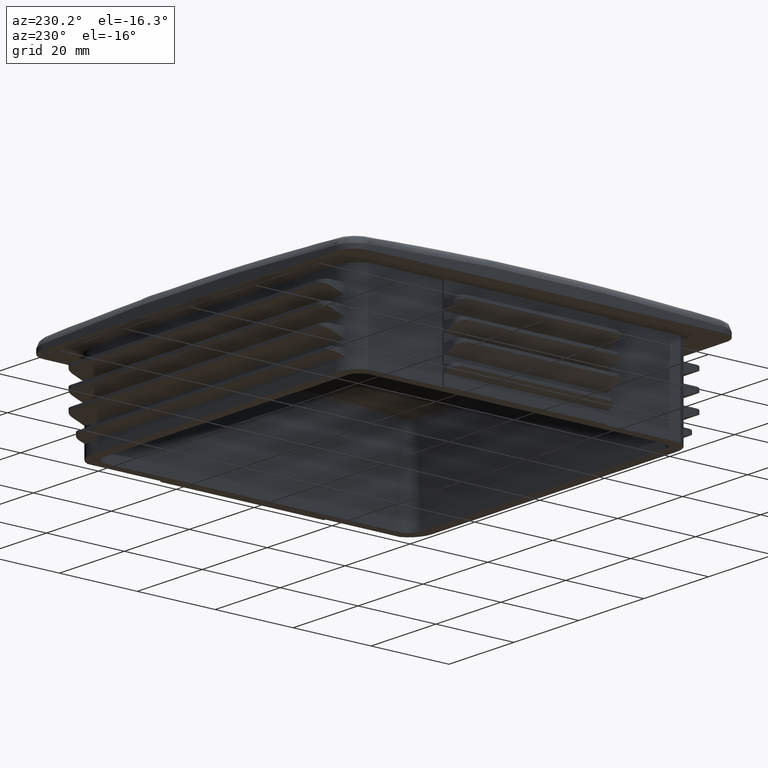
[diagram: clean part render]
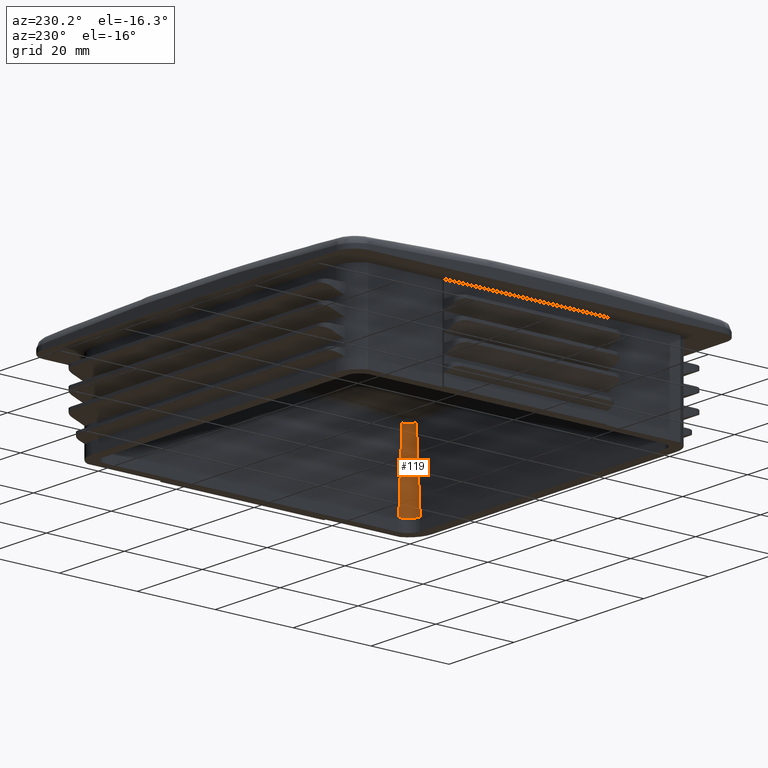
[diagram: same view with one face highlighted and labeled with its STEP entity id]
A machine part, auxiliary view. The second image highlights one B-rep face of the part: STEP entity #119.
In plain terms, the highlighted conical surface has half-angle 3 deg.
Its self-contained STEP definition (entity closure, byte-faithful):
#119 = ADVANCED_FACE( '', ( #417 ), #418, .F. );
#417 = FACE_OUTER_BOUND( '', #2736, .T. );
#418 = CONICAL_SURFACE( '', #2737, 3.00000000000001, 0.0523598775598299 );
#2736 = EDGE_LOOP( '', ( #3723, #3724, #3725, #3726 ) );
#2737 = AXIS2_PLACEMENT_3D( '', #3727, #3728, #3729 );
#3723 = ORIENTED_EDGE( '', *, *, #5468, .F. );
#3724 = ORIENTED_EDGE( '', *, *, #5456, .T. );
#3725 = ORIENTED_EDGE( '', *, *, #5472, .T. );
#3726 = ORIENTED_EDGE( '', *, *, #5581, .F. );
#3727 = CARTESIAN_POINT( '', ( 37.7000000000000, -37.7000000000000, -19.0000000000000 ) );
#3728 = DIRECTION( '', ( 0.000000000000000, 0.000000000000000, -1.00000000000000 ) );
#3729 = DIRECTION( '', ( 1.00000000000000, 0.000000000000000, 0.000000000000000 ) );
#5456 = EDGE_CURVE( '', #6150, #6154, #6156, .T. );
#5468 = EDGE_CURVE( '', #6150, #6174, #6175, .T. );
#5472 = EDGE_CURVE( '', #6154, #6180, #6181, .T. );
#5581 = EDGE_CURVE( '', #6174, #6180, #6368, .T. );
#6150 = VERTEX_POINT( '', #7275 );
#6154 = VERTEX_POINT( '', #7293 );
#6156 = B_SPLINE_CURVE_WITH_KNOTS( '', 3, ( #7295, #7296, #7297, #7298, #7299, #7300, #7301, #7302, #7303, #7304, #7305, #7306, #7307, #7308, #7309, #7310, #7311, #7312, #7313, #7314, #7315, #7316, #7317, #7318, #7319, #7320, #7321, #7322, #7323, #7324, #7325, #7326, #7327, #7328, #7329, #7330, #7331, #7332, #7333, #7334, #7335, #7336, #7337 ), .UNSPECIFIED., .F., .F., ( 4, 1, 1, 2, 1, 2, 2, 2, 1, 2, 1, 2, 2, 1, 1, 2, 2, 2, 2, 1, 2, 1, 2, 2, 1, 1, 4 ), ( 0.000000000000000, 0.000194797613514649, 0.000389595227029298, 0.000584392840543947, 0.000633092243922590, 0.000657441945611911, 0.000681791647301233, 0.000779190454058531, 0.000973988067573136, 0.00116878568108774, 0.00126618448784505, 0.00131488389122368, 0.00136358329460232, 0.00155838090811688, 0.00175317852163144, 0.00194797613514600, 0.00199667553852463, 0.00204537494190327, 0.00214277374866053, 0.00233757136217505, 0.00253236897568957, 0.00262976778244683, 0.00265411748413614, 0.00267846718582546, 0.00272716658920411, 0.00292196420271877, 0.00311676181623342 ), .UNSPECIFIED. );
#6174 = VERTEX_POINT( '', #7569 );
#6175 = LINE( '', #7570, #7571 );
#6180 = VERTEX_POINT( '', #7619 );
#6181 = LINE( '', #7620, #7621 );
#6368 = CIRCLE( '', #8860, 3.00000000000000 );
#7275 = CARTESIAN_POINT( '', ( 37.7000000000000, -39.6941967815034, 0.191868693092109 ) );
#7293 = CARTESIAN_POINT( '', ( 39.6941967815033, -37.7000000000000, 0.191868693092127 ) );
#7295 = CARTESIAN_POINT( '', ( 37.7000000000000, -39.6941967815034, 0.191868693092113 ) );
#7296 = CARTESIAN_POINT( '', ( 37.7658437684800, -39.6942793328378, 0.190293519795617 ) );
#7297 = CARTESIAN_POINT( '', ( 37.8964369197437, -39.6879304560238, 0.187324573617846 ) );
#7298 = CARTESIAN_POINT( '', ( 38.0891562274166, -39.6595361993232, 0.183396999300602 ) );
#7299 = CARTESIAN_POINT( '', ( 38.2155347404343, -39.6281009648654, 0.181127302812569 ) );
#7300 = CARTESIAN_POINT( '', ( 38.2938495219490, -39.6044553107198, 0.179820295031113 ) );
#7301 = CARTESIAN_POINT( '', ( 38.3172934555333, -39.5970610224927, 0.179436578486719 ) );
#7302 = CARTESIAN_POINT( '', ( 38.3406608471098, -39.5892111396665, 0.179065573573460 ) );
#7303 = CARTESIAN_POINT( '', ( 38.3562219948337, -39.5838760222004, 0.178821079220741 ) );
#7304 = CARTESIAN_POINT( '', ( 38.3639959179874, -39.5811567742914, 0.178700225725239 ) );
#7305 = CARTESIAN_POINT( '', ( 38.4027148202075, -39.5673435030595, 0.178104745295285 ) );
#7306 = CARTESIAN_POINT( '', ( 38.4332922545376, -39.5555704943914, 0.177655123803572 ) );
#7307 = CARTESIAN_POINT( '', ( 38.5238554110773, -39.5181277357889, 0.176384954079335 ) );
#7308 = CARTESIAN_POINT( '', ( 38.6414941750496, -39.4625509656182, 0.174900870554601 ) );
#7309 = CARTESIAN_POINT( '', ( 38.7530214509003, -39.3958727891397, 0.173828290616430 ) );
#7310 = CARTESIAN_POINT( '', ( 38.8343508350498, -39.3416570522753, 0.173179842789846 ) );
#7311 = CARTESIAN_POINT( '', ( 38.8744354828152, -39.3134955437840, 0.172894684547836 ) );
#7312 = CARTESIAN_POINT( '', ( 38.9136358034203, -39.2837276708002, 0.172669090657126 ) );
#7313 = CARTESIAN_POINT( '', ( 38.9395705293696, -39.2635212671208, 0.172532086890641 ) );
#7314 = CARTESIAN_POINT( '', ( 38.9524447867709, -39.2532316074861, 0.172470270935675 ) );
#7315 = CARTESIAN_POINT( '', ( 39.0159623873108, -39.2011641940923, 0.172196415207336 ) );
#7316 = CARTESIAN_POINT( '', ( 39.1127036455486, -39.1134761183934, 0.171979883440058 ) );
#7317 = CARTESIAN_POINT( '', ( 39.2435976014595, -38.9692002301958, 0.172299949080749 ) );
#7318 = CARTESIAN_POINT( '', ( 39.3213990740129, -38.8645361012411, 0.172942422054102 ) );
#7319 = CARTESIAN_POINT( '', ( 39.3669869254265, -38.7963979475343, 0.173481733906235 ) );
#7320 = CARTESIAN_POINT( '', ( 39.3759522355574, -38.7826338434163, 0.173596500709024 ) );
#7321 = CARTESIAN_POINT( '', ( 39.3935748179631, -38.7548295355829, 0.173840001960879 ) );
#7322 = CARTESIAN_POINT( '', ( 39.4022068906904, -38.7408285780523, 0.173968400474320 ) );
#7323 = CARTESIAN_POINT( '', ( 39.4275187244906, -38.6986162851921, 0.174372575639108 ) );
#7324 = CARTESIAN_POINT( '', ( 39.4436370988420, -38.6701600653542, 0.174667630093562 ) );
#7325 = CARTESIAN_POINT( '', ( 39.4897641451052, -38.5838641728914, 0.175628225473212 ) );
#7326 = CARTESIAN_POINT( '', ( 39.5453358576951, -38.4663347407201, 0.177109815987576 ) );
#7327 = CARTESIAN_POINT( '', ( 39.5892104533768, -38.3439374527753, 0.178987277601472 ) );
#7328 = CARTESIAN_POINT( '', ( 39.6176644135567, -38.2502867534202, 0.180545979828663 ) );
#7329 = CARTESIAN_POINT( '', ( 39.6285910844604, -38.2108789564694, 0.181226870974342 ) );
#7330 = CARTESIAN_POINT( '', ( 39.6383346825565, -38.1709788132221, 0.181947774500040 ) );
#7331 = CARTESIAN_POINT( '', ( 39.6421368237492, -38.1549790967889, 0.182239358750829 ) );
#7332 = CARTESIAN_POINT( '', ( 39.6439911024536, -38.1469555213377, 0.182386834741722 ) );
#7333 = CARTESIAN_POINT( '', ( 39.6493987450804, -38.1228768975413, 0.182833156136606 ) );
#7334 = CARTESIAN_POINT( '', ( 39.6664036651944, -38.0424998191275, 0.184348004358372 ) );
#7335 = CARTESIAN_POINT( '', ( 39.6879295488647, -37.8967975818908, 0.187315977456097 ) );
#7336 = CARTESIAN_POINT( '', ( 39.6942793330040, -37.7658439010980, 0.190293516622942 ) );
#7337 = CARTESIAN_POINT( '', ( 39.6941967815033, -37.7000000000000, 0.191868693092044 ) );
#7569 = CARTESIAN_POINT( '', ( 37.7000000000000, -40.7000000000000, -19.0000000000000 ) );
#7570 = CARTESIAN_POINT( '', ( 37.7000000000000, -40.7000000000000, -19.0000000000000 ) );
#7571 = VECTOR( '', #10644, 1000.00000000000 );
#7619 = CARTESIAN_POINT( '', ( 40.7000000000000, -37.7000000000000, -19.0000000000000 ) );
#7620 = CARTESIAN_POINT( '', ( 40.7000000000000, -37.7000000000000, -19.0000000000000 ) );
#7621 = VECTOR( '', #10649, 1000.00000000000 );
#8860 = AXIS2_PLACEMENT_3D( '', #10787, #10788, #10789 );
#10644 = DIRECTION( '', ( 0.000000000000000, -0.0523359562429438, -0.998629534754574 ) );
#10649 = DIRECTION( '', ( 0.0523359562429438, -1.29018093179425E-033, -0.998629534754574 ) );
#10787 = CARTESIAN_POINT( '', ( 37.7000000000000, -37.7000000000000, -19.0000000000000 ) );
#10788 = DIRECTION( '', ( 0.000000000000000, 0.000000000000000, 1.00000000000000 ) );
#10789 = DIRECTION( '', ( 0.000000000000000, -1.00000000000000, 0.000000000000000 ) );